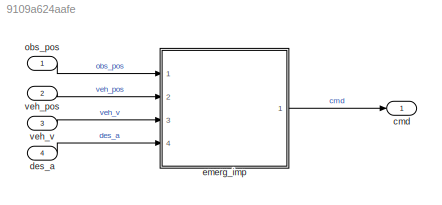
MODEL slx_9109a624aafe
KIND model
CONFIG AbsTol = auto
CONFIG EnableMultiTasking = off
CONFIG FixedStep = auto
CONFIG MaxStep = auto
CONFIG MinStep = auto
CONFIG RelTol = 1e-3
CONFIG SampleTimeConstraint = Unconstrained
CONFIG Solver = VariableStepAuto
CONFIG SolverName = VariableStepAuto
CONFIG StartTime = 0.0
CONFIG StopTime = 10.0
BLOCK [Outport] cmd
  IconDisplay = Port number
BLOCK [Inport] des_a
  IconDisplay = Port number
  Port = 4
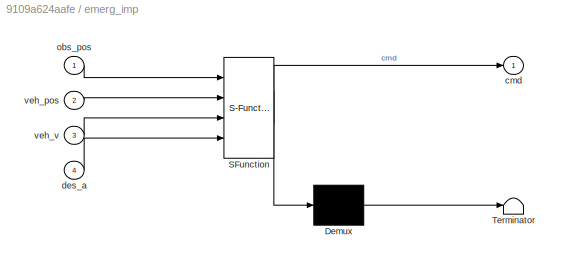
BLOCK [SubSystem] emerg_imp
  ErrorFcn = Stateflow.Translate.translate
  PermitHierarchicalResolution = ExplicitOnly
  Ports = [4, 1]
  RequestExecContextInheritance = off
  SFBlockType = Chart
  TreatAsAtomicUnit = on
BLOCK [Demux] emerg_imp/ Demux 
  Outputs = 1
  Ports = [1, 1]
BLOCK [S-Function] emerg_imp/ SFunction 
  EnableBusSupport = on
  FunctionName = sf_sfun
  PortCounts = [4 2]
  Ports = [4, 2]
  SFcnIsStateOwnerBlock = off
  SFunctionDeploymentMode = off
  Tag = Stateflow S-Function emerg_imp 3
BLOCK [Terminator] emerg_imp/ Terminator 
BLOCK [Outport] emerg_imp/cmd
  IconDisplay = Port number
BLOCK [Inport] emerg_imp/des_a
  IconDisplay = Port number
  Port = 4
BLOCK [Inport] emerg_imp/obs_pos
  IconDisplay = Port number
BLOCK [Inport] emerg_imp/veh_pos
  IconDisplay = Port number
  Port = 2
BLOCK [Inport] emerg_imp/veh_v
  IconDisplay = Port number
  Port = 3
BLOCK [Inport] obs_pos
  IconDisplay = Port number
BLOCK [Inport] veh_pos
  IconDisplay = Port number
  Port = 2
BLOCK [Inport] veh_v
  IconDisplay = Port number
  Port = 3
LINE des_a:1 -> emerg_imp:4
LINE emerg_imp:1 -> cmd:1
LINE obs_pos:1 -> emerg_imp:1
LINE veh_pos:1 -> emerg_imp:2
LINE veh_v:1 -> emerg_imp:3
CHART emerg_imp states=2 transitions=6
  STATE_LABEL 'state'
  STATE_LABEL 'v_lim = V_lim'
  STATE_LABEL 'SCRIPT:\nfunction v_lim = V_lim()\n \ndistance = obs_pos - next_s;\nmax_d = max_v * max_v / (-2 * min_a);\nif obs_pos <= 0 || distance >= max_d\n    v_lim = max_v;\nelse\n    if distance >= 0\n        v_lim = sqrt(-2 * min_a * distance);\n    else\n        v_lim = 0;\n    end\nend'
